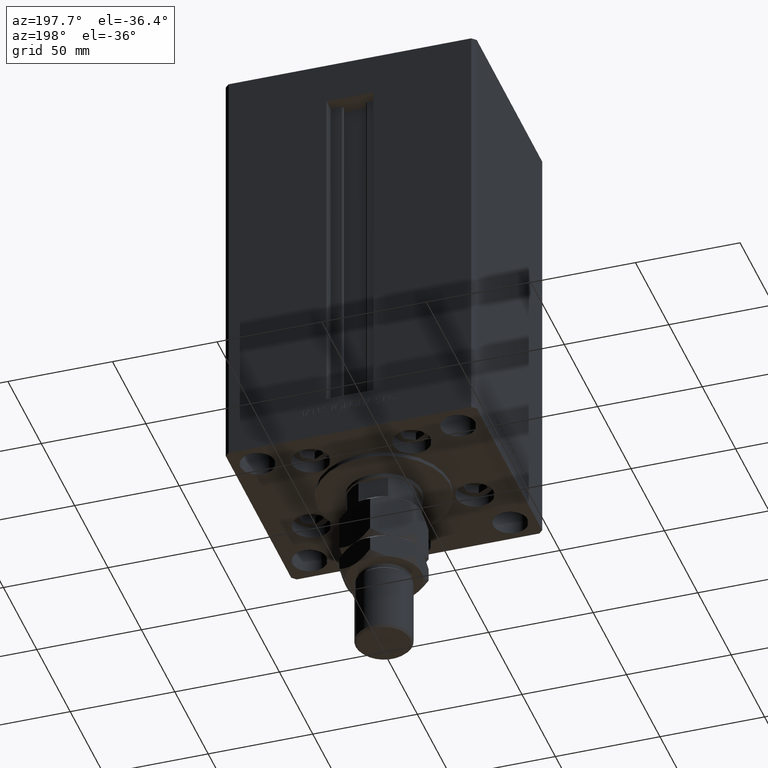
[diagram: clean part render]
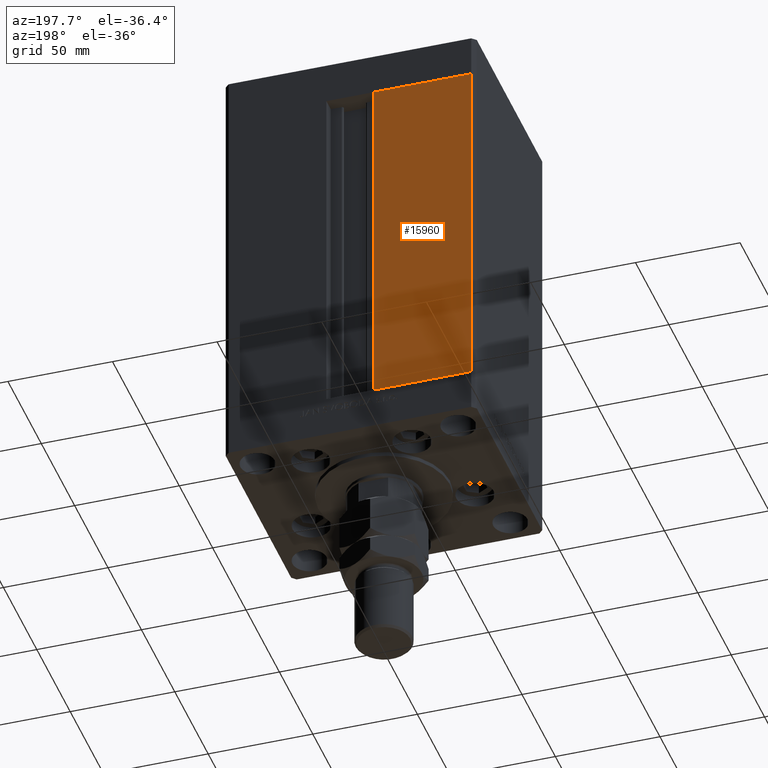
[diagram: same view with one face highlighted and labeled with its STEP entity id]
A machine part, auxiliary view. The second image highlights one B-rep face of the part: STEP entity #15960.
In plain terms, the highlighted planar face has unit normal (-0, -1, 0).
Its self-contained STEP definition (entity closure, byte-faithful):
#2984 = DIRECTION ( 'NONE',  ( -1.000000000000000000, 1.484255380514915423E-16, 0.000000000000000000 ) ) ;
#4681 = EDGE_LOOP ( 'NONE', ( #45170, #44407, #29471, #47458 ) ) ;
#4846 = EDGE_CURVE ( 'NONE', #34365, #38393, #14760, .T. ) ;
#5746 = AXIS2_PLACEMENT_3D ( 'NONE', #43488, #43229, #43736 ) ;
#7247 = EDGE_CURVE ( 'NONE', #47330, #31416, #44509, .T. ) ;
#8817 = EDGE_CURVE ( 'NONE', #34365, #31416, #28167, .T. ) ;
#9895 = DIRECTION ( 'NONE',  ( -0.000000000000000000, -0.000000000000000000, -1.000000000000000000 ) ) ;
#11479 = CARTESIAN_POINT ( 'NONE',  ( -57.99999999999999289, 51.00000000000000711, 168.5000000000000000 ) ) ;
#14760 = LINE ( 'NONE', #49710, #36634 ) ;
#15960 = ADVANCED_FACE ( 'NONE', ( #35790 ), #27829, .F. ) ;
#18718 = VECTOR ( 'NONE', #43835, 1000.000000000000000 ) ;
#20897 = CARTESIAN_POINT ( 'NONE',  ( -11.25000000000000178, 51.00000000000000000, 0.000000000000000000 ) ) ;
#21482 = CARTESIAN_POINT ( 'NONE',  ( -11.25000000000000178, 51.00000000000000000, 168.5000000000000000 ) ) ;
#23654 = CARTESIAN_POINT ( 'NONE',  ( -11.25000000000000178, 51.00000000000000000, 168.5000000000000000 ) ) ;
#27829 = PLANE ( 'NONE',  #5746 ) ;
#28167 = LINE ( 'NONE', #21482, #18718 ) ;
#29471 = ORIENTED_EDGE ( 'NONE', *, *, #50433, .T. ) ;
#31416 = VERTEX_POINT ( 'NONE', #23654 ) ;
#31709 = DIRECTION ( 'NONE',  ( -0.000000000000000000, -0.000000000000000000, 1.000000000000000000 ) ) ;
#32609 = VECTOR ( 'NONE', #31709, 1000.000000000000000 ) ;
#34365 = VERTEX_POINT ( 'NONE', #11479 ) ;
#35790 = FACE_OUTER_BOUND ( 'NONE', #4681, .T. ) ;
#36634 = VECTOR ( 'NONE', #9895, 1000.000000000000000 ) ;
#38179 = CARTESIAN_POINT ( 'NONE',  ( -11.25000000000000178, 51.00000000000000000, 0.000000000000000000 ) ) ;
#38393 = VERTEX_POINT ( 'NONE', #47718 ) ;
#42777 = LINE ( 'NONE', #38179, #48931 ) ;
#43229 = DIRECTION ( 'NONE',  ( -1.484255380514915423E-16, -1.000000000000000000, 0.000000000000000000 ) ) ;
#43488 = CARTESIAN_POINT ( 'NONE',  ( -11.25000000000000178, 51.00000000000000000, 168.5000000000000000 ) ) ;
#43736 = DIRECTION ( 'NONE',  ( 1.000000000000000000, -1.484255380514915423E-16, 0.000000000000000000 ) ) ;
#43835 = DIRECTION ( 'NONE',  ( 1.000000000000000000, 0.000000000000000000, 0.000000000000000000 ) ) ;
#44288 = CARTESIAN_POINT ( 'NONE',  ( -11.25000000000000178, 51.00000000000000000, 0.000000000000000000 ) ) ;
#44407 = ORIENTED_EDGE ( 'NONE', *, *, #7247, .F. ) ;
#44509 = LINE ( 'NONE', #20897, #32609 ) ;
#45170 = ORIENTED_EDGE ( 'NONE', *, *, #8817, .T. ) ;
#47330 = VERTEX_POINT ( 'NONE', #44288 ) ;
#47458 = ORIENTED_EDGE ( 'NONE', *, *, #4846, .F. ) ;
#47718 = CARTESIAN_POINT ( 'NONE',  ( -57.99999999999999289, 51.00000000000000711, 0.000000000000000000 ) ) ;
#48931 = VECTOR ( 'NONE', #2984, 1000.000000000000000 ) ;
#49710 = CARTESIAN_POINT ( 'NONE',  ( -57.99999999999999289, 51.00000000000000711, 168.5000000000000000 ) ) ;
#50433 = EDGE_CURVE ( 'NONE', #47330, #38393, #42777, .T. ) ;